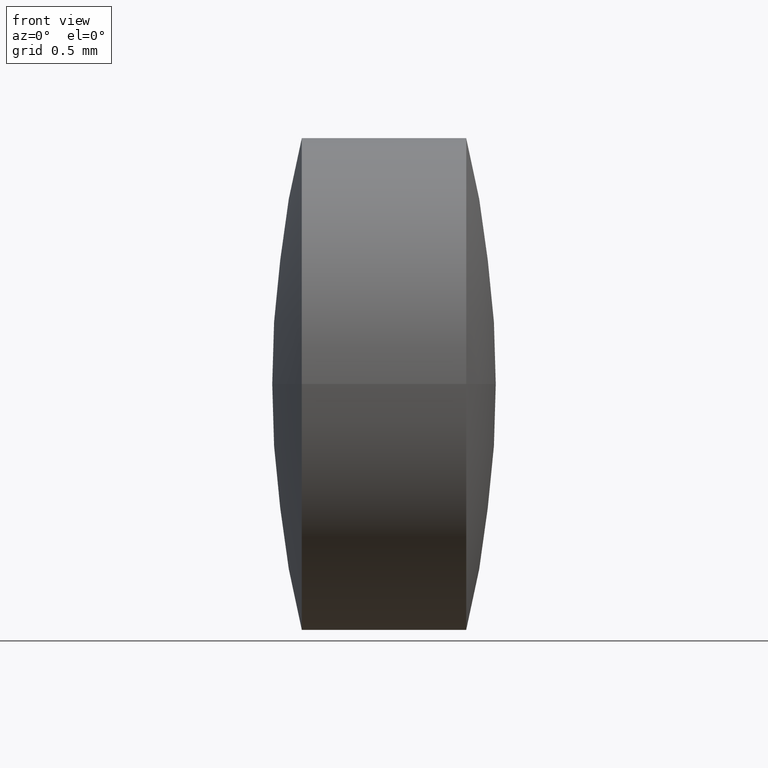
[diagram: clean part render]
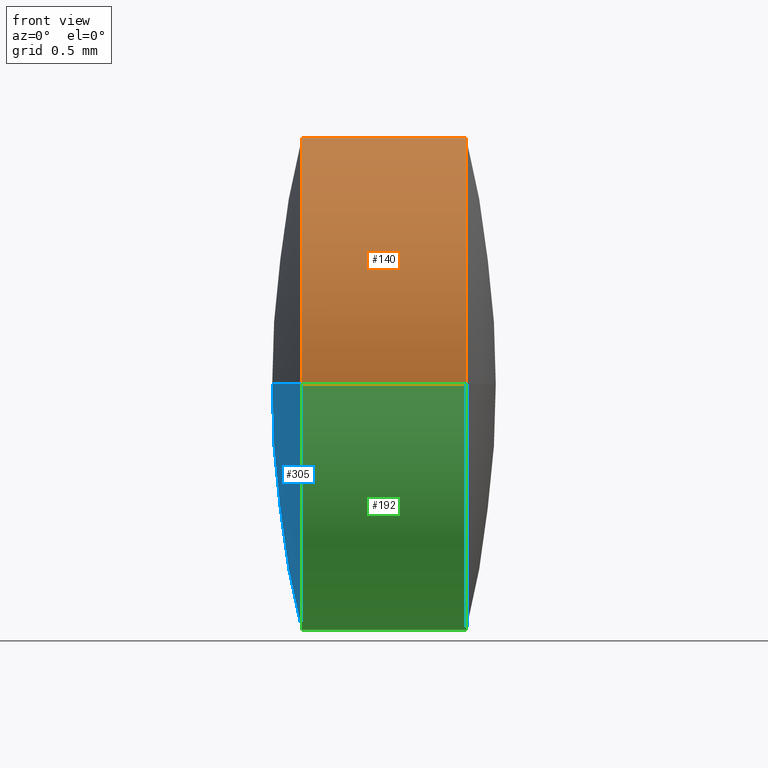
[diagram: same view with three faces highlighted in distinct colors, each labeled with its STEP entity id]
A machine part, front view with three faces highlighted in distinct colors.
Their STEP definitions:

[orange] entity #140 — the highlighted cylindrical surface (partial cylindrical patch) has radius 1.5 mm, axis along (-1, 0, -0).
#15 = CARTESIAN_POINT ( 'NONE',  ( 9.287603355992811100, 7.242101976729419000, 1.836980695753582100E-016 ) ) ;
#22 = CARTESIAN_POINT ( 'NONE',  ( 9.711656042241019200, 4.242084833774320900, -1.836980695753577600E-016 ) ) ;
#26 = VERTEX_POINT ( 'NONE', #22 ) ;
#38 = LINE ( 'NONE', #15, #166 ) ;
#45 = DIRECTION ( 'NONE',  ( -1.000000000000000000, 2.321391627492575400E-015, -0.0000000000000000000 ) ) ;
#46 = EDGE_CURVE ( 'NONE', #26, #137, #121, .T. ) ;
#53 = VERTEX_POINT ( 'NONE', #235 ) ;
#64 = DIRECTION ( 'NONE',  ( -2.312951417694965000E-015, -1.000000000000000000, 0.0000000000000000000 ) ) ;
#75 = ORIENTED_EDGE ( 'NONE', *, *, #134, .F. ) ;
#93 = ORIENTED_EDGE ( 'NONE', *, *, #46, .F. ) ;
#96 = CYLINDRICAL_SURFACE ( 'NONE', #118, 1.500008571477556000 ) ;
#100 = DIRECTION ( 'NONE',  ( -1.000000000000000000, 2.321391627492575400E-015, -0.0000000000000000000 ) ) ;
#102 = CIRCLE ( 'NONE', #275, 1.500008571477556800 ) ;
#114 = ORIENTED_EDGE ( 'NONE', *, *, #255, .T. ) ;
#117 = ORIENTED_EDGE ( 'NONE', *, *, #274, .T. ) ;
#118 = AXIS2_PLACEMENT_3D ( 'NONE', #156, #295, #154 ) ;
#121 = CIRCLE ( 'NONE', #155, 1.500008571477554200 ) ;
#133 = VECTOR ( 'NONE', #100, 1000.000000000000000 ) ;
#134 = EDGE_CURVE ( 'NONE', #53, #26, #234, .T. ) ;
#137 = VERTEX_POINT ( 'NONE', #300 ) ;
#140 = ADVANCED_FACE ( 'NONE', ( #279 ), #96, .T. ) ;
#152 = CARTESIAN_POINT ( 'NONE',  ( 10.71165604224102100, 5.742093405251859300, 0.0000000000000000000 ) ) ;
#154 = DIRECTION ( 'NONE',  ( -2.312951417694966200E-015, -1.000000000000000000, 0.0000000000000000000 ) ) ;
#155 = AXIS2_PLACEMENT_3D ( 'NONE', #270, #45, #170 ) ;
#156 = CARTESIAN_POINT ( 'NONE',  ( 9.287603355992807500, 5.742093405251862800, 0.0000000000000000000 ) ) ;
#166 = VECTOR ( 'NONE', #237, 1000.000000000000000 ) ;
#170 = DIRECTION ( 'NONE',  ( -2.312951417694968900E-015, -1.000000000000000000, 0.0000000000000000000 ) ) ;
#171 = EDGE_LOOP ( 'NONE', ( #114, #117, #93, #75 ) ) ;
#193 = CARTESIAN_POINT ( 'NONE',  ( 9.287603355992805700, 4.242084833774306700, 0.0000000000000000000 ) ) ;
#194 = DIRECTION ( 'NONE',  ( -1.000000000000000000, 2.321391627492575400E-015, -0.0000000000000000000 ) ) ;
#234 = LINE ( 'NONE', #193, #133 ) ;
#235 = CARTESIAN_POINT ( 'NONE',  ( 10.71165604224101700, 4.242084833774289800, -1.836980695753588200E-016 ) ) ;
#237 = DIRECTION ( 'NONE',  ( -1.000000000000000000, 2.321391627492575400E-015, -0.0000000000000000000 ) ) ;
#255 = EDGE_CURVE ( 'NONE', #53, #290, #102, .T. ) ;
#270 = CARTESIAN_POINT ( 'NONE',  ( 9.711656042241022700, 5.742093405251862000, 0.0000000000000000000 ) ) ;
#274 = EDGE_CURVE ( 'NONE', #290, #137, #38, .T. ) ;
#275 = AXIS2_PLACEMENT_3D ( 'NONE', #152, #194, #64 ) ;
#279 = FACE_OUTER_BOUND ( 'NONE', #171, .T. ) ;
#286 = CARTESIAN_POINT ( 'NONE',  ( 10.71165604224102300, 7.242101976729420800, 0.0000000000000000000 ) ) ;
#290 = VERTEX_POINT ( 'NONE', #286 ) ;
#295 = DIRECTION ( 'NONE',  ( -1.000000000000000000, 2.321391627492575400E-015, -0.0000000000000000000 ) ) ;
#300 = CARTESIAN_POINT ( 'NONE',  ( 9.711656042241026300, 7.242101976729413700, 0.0000000000000000000 ) ) ;

[blue] entity #305 — the highlighted spherical surface has radius 6.3433 mm.
#3 = CIRCLE ( 'NONE', #6, 6.343264629644567200 ) ;
#6 = AXIS2_PLACEMENT_3D ( 'NONE', #142, #54, #74 ) ;
#14 = DIRECTION ( 'NONE',  ( 0.0000000000000000000, 0.0000000000000000000, -1.000000000000000000 ) ) ;
#21 = ORIENTED_EDGE ( 'NONE', *, *, #65, .F. ) ;
#22 = CARTESIAN_POINT ( 'NONE',  ( 9.711656042241019200, 4.242084833774320900, -1.836980695753577600E-016 ) ) ;
#26 = VERTEX_POINT ( 'NONE', #22 ) ;
#29 = DIRECTION ( 'NONE',  ( 2.842884826176247500E-031, 1.224646799147353200E-016, -1.000000000000000000 ) ) ;
#41 = EDGE_LOOP ( 'NONE', ( #123, #251, #21 ) ) ;
#44 = AXIS2_PLACEMENT_3D ( 'NONE', #106, #14, #128 ) ;
#54 = DIRECTION ( 'NONE',  ( 0.0000000000000000000, 0.0000000000000000000, 1.000000000000000000 ) ) ;
#56 = CIRCLE ( 'NONE', #184, 6.343264629644565400 ) ;
#62 = DIRECTION ( 'NONE',  ( 0.0000000000000000000, 1.000000000000000000, 1.224646799147353000E-016 ) ) ;
#65 = EDGE_CURVE ( 'NONE', #137, #254, #3, .T. ) ;
#74 = DIRECTION ( 'NONE',  ( 1.000000000000000000, 0.0000000000000000000, 0.0000000000000000000 ) ) ;
#101 = AXIS2_PLACEMENT_3D ( 'NONE', #223, #163, #263 ) ;
#106 = CARTESIAN_POINT ( 'NONE',  ( 15.87501392956135100, 5.742093405251858400, 0.0000000000000000000 ) ) ;
#111 = CIRCLE ( 'NONE', #101, 1.500008571477554200 ) ;
#123 = ORIENTED_EDGE ( 'NONE', *, *, #227, .T. ) ;
#128 = DIRECTION ( 'NONE',  ( 2.187798967578635600E-015, 1.000000000000000000, 0.0000000000000000000 ) ) ;
#137 = VERTEX_POINT ( 'NONE', #300 ) ;
#142 = CARTESIAN_POINT ( 'NONE',  ( 15.87501392956135100, 5.742093405251858400, 0.0000000000000000000 ) ) ;
#153 = CARTESIAN_POINT ( 'NONE',  ( 9.531749299916786100, 5.742093405251872600, 0.0000000000000000000 ) ) ;
#162 = FACE_OUTER_BOUND ( 'NONE', #41, .T. ) ;
#163 = DIRECTION ( 'NONE',  ( -1.000000000000000000, 2.321391627492575400E-015, -0.0000000000000000000 ) ) ;
#184 = AXIS2_PLACEMENT_3D ( 'NONE', #261, #29, #62 ) ;
#223 = CARTESIAN_POINT ( 'NONE',  ( 9.711656042241022700, 5.742093405251862000, 0.0000000000000000000 ) ) ;
#227 = EDGE_CURVE ( 'NONE', #137, #26, #111, .T. ) ;
#251 = ORIENTED_EDGE ( 'NONE', *, *, #293, .T. ) ;
#254 = VERTEX_POINT ( 'NONE', #153 ) ;
#261 = CARTESIAN_POINT ( 'NONE',  ( 15.87501392956135100, 5.742093405251858400, 0.0000000000000000000 ) ) ;
#263 = DIRECTION ( 'NONE',  ( -2.312951417694968900E-015, -1.000000000000000000, 0.0000000000000000000 ) ) ;
#293 = EDGE_CURVE ( 'NONE', #26, #254, #56, .T. ) ;
#294 = SPHERICAL_SURFACE ( 'NONE', #44, 6.343264629644565400 ) ;
#300 = CARTESIAN_POINT ( 'NONE',  ( 9.711656042241026300, 7.242101976729413700, 0.0000000000000000000 ) ) ;
#305 = ADVANCED_FACE ( 'NONE', ( #162 ), #294, .T. ) ;

[green] entity #192 — the highlighted cylindrical surface (partial cylindrical patch) has radius 1.5 mm, axis along (-1, 0, -0).
#15 = CARTESIAN_POINT ( 'NONE',  ( 9.287603355992811100, 7.242101976729419000, 1.836980695753582100E-016 ) ) ;
#22 = CARTESIAN_POINT ( 'NONE',  ( 9.711656042241019200, 4.242084833774320900, -1.836980695753577600E-016 ) ) ;
#26 = VERTEX_POINT ( 'NONE', #22 ) ;
#38 = LINE ( 'NONE', #15, #166 ) ;
#53 = VERTEX_POINT ( 'NONE', #235 ) ;
#66 = CIRCLE ( 'NONE', #169, 1.500008571477556800 ) ;
#88 = CARTESIAN_POINT ( 'NONE',  ( 10.71165604224102100, 5.742093405251859300, 0.0000000000000000000 ) ) ;
#90 = EDGE_CURVE ( 'NONE', #290, #53, #66, .T. ) ;
#100 = DIRECTION ( 'NONE',  ( -1.000000000000000000, 2.321391627492575400E-015, -0.0000000000000000000 ) ) ;
#101 = AXIS2_PLACEMENT_3D ( 'NONE', #223, #163, #263 ) ;
#110 = ORIENTED_EDGE ( 'NONE', *, *, #134, .T. ) ;
#111 = CIRCLE ( 'NONE', #101, 1.500008571477554200 ) ;
#113 = DIRECTION ( 'NONE',  ( -1.000000000000000000, 2.321391627492575400E-015, -0.0000000000000000000 ) ) ;
#127 = DIRECTION ( 'NONE',  ( -1.000000000000000000, 2.321391627492575400E-015, -0.0000000000000000000 ) ) ;
#133 = VECTOR ( 'NONE', #100, 1000.000000000000000 ) ;
#134 = EDGE_CURVE ( 'NONE', #53, #26, #234, .T. ) ;
#135 = DIRECTION ( 'NONE',  ( -2.312951417694965000E-015, -1.000000000000000000, 0.0000000000000000000 ) ) ;
#137 = VERTEX_POINT ( 'NONE', #300 ) ;
#163 = DIRECTION ( 'NONE',  ( -1.000000000000000000, 2.321391627492575400E-015, -0.0000000000000000000 ) ) ;
#166 = VECTOR ( 'NONE', #237, 1000.000000000000000 ) ;
#169 = AXIS2_PLACEMENT_3D ( 'NONE', #88, #113, #135 ) ;
#187 = EDGE_LOOP ( 'NONE', ( #276, #302, #110, #291 ) ) ;
#192 = ADVANCED_FACE ( 'NONE', ( #271 ), #229, .T. ) ;
#193 = CARTESIAN_POINT ( 'NONE',  ( 9.287603355992805700, 4.242084833774306700, 0.0000000000000000000 ) ) ;
#203 = CARTESIAN_POINT ( 'NONE',  ( 9.287603355992807500, 5.742093405251862800, 0.0000000000000000000 ) ) ;
#209 = AXIS2_PLACEMENT_3D ( 'NONE', #203, #127, #239 ) ;
#223 = CARTESIAN_POINT ( 'NONE',  ( 9.711656042241022700, 5.742093405251862000, 0.0000000000000000000 ) ) ;
#227 = EDGE_CURVE ( 'NONE', #137, #26, #111, .T. ) ;
#229 = CYLINDRICAL_SURFACE ( 'NONE', #209, 1.500008571477556000 ) ;
#234 = LINE ( 'NONE', #193, #133 ) ;
#235 = CARTESIAN_POINT ( 'NONE',  ( 10.71165604224101700, 4.242084833774289800, -1.836980695753588200E-016 ) ) ;
#237 = DIRECTION ( 'NONE',  ( -1.000000000000000000, 2.321391627492575400E-015, -0.0000000000000000000 ) ) ;
#239 = DIRECTION ( 'NONE',  ( -2.312951417694966200E-015, -1.000000000000000000, 0.0000000000000000000 ) ) ;
#263 = DIRECTION ( 'NONE',  ( -2.312951417694968900E-015, -1.000000000000000000, 0.0000000000000000000 ) ) ;
#271 = FACE_OUTER_BOUND ( 'NONE', #187, .T. ) ;
#274 = EDGE_CURVE ( 'NONE', #290, #137, #38, .T. ) ;
#276 = ORIENTED_EDGE ( 'NONE', *, *, #274, .F. ) ;
#286 = CARTESIAN_POINT ( 'NONE',  ( 10.71165604224102300, 7.242101976729420800, 0.0000000000000000000 ) ) ;
#290 = VERTEX_POINT ( 'NONE', #286 ) ;
#291 = ORIENTED_EDGE ( 'NONE', *, *, #227, .F. ) ;
#300 = CARTESIAN_POINT ( 'NONE',  ( 9.711656042241026300, 7.242101976729413700, 0.0000000000000000000 ) ) ;
#302 = ORIENTED_EDGE ( 'NONE', *, *, #90, .T. ) ;